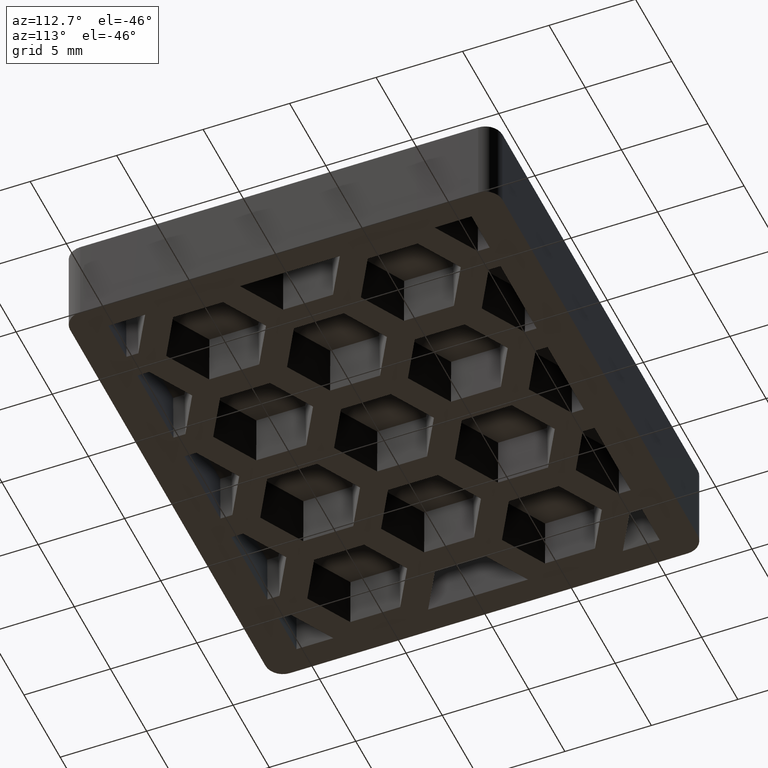
[diagram: clean part render]
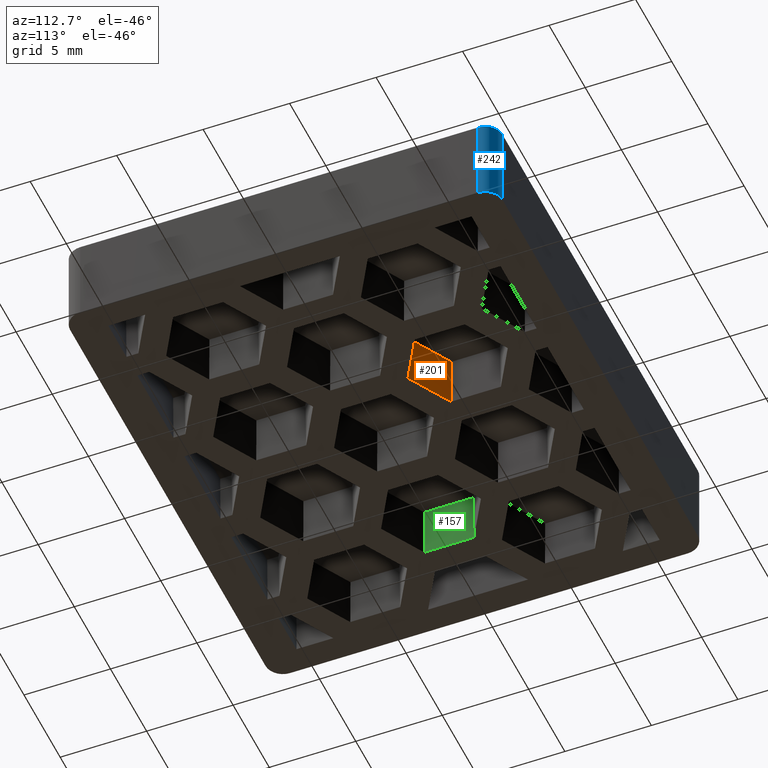
[diagram: same view with three faces highlighted in distinct colors, each labeled with its STEP entity id]
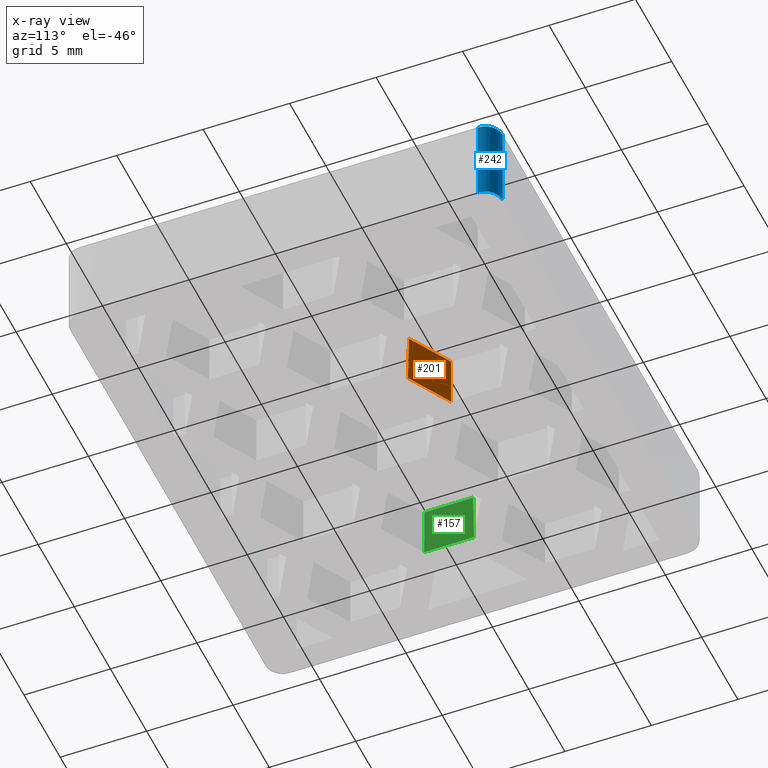
[diagram: x-ray of the same camera — body ghosted, the three highlighted faces saturated]
A machine part, auxiliary view with three faces highlighted in distinct colors.
The next image is the same camera in x-ray (body ghosted, the three faces saturated) — at least one of them is partly hidden behind the body in this view.
Their STEP definitions:

[orange] entity #201 — the highlighted planar face has unit normal (-0.4999, -0.8659, 0.0175).
#201 = ADVANCED_FACE( '', ( #552 ), #553, .F. );
#552 = FACE_OUTER_BOUND( '', #968, .T. );
#553 = PLANE( '', #969 );
#968 = EDGE_LOOP( '', ( #2170, #2171, #2172, #2173 ) );
#969 = AXIS2_PLACEMENT_3D( '', #2174, #2175, #2176 );
#2170 = ORIENTED_EDGE( '', *, *, #2955, .T. );
#2171 = ORIENTED_EDGE( '', *, *, #3059, .T. );
#2172 = ORIENTED_EDGE( '', *, *, #2799, .F. );
#2173 = ORIENTED_EDGE( '', *, *, #3060, .F. );
#2174 = CARTESIAN_POINT( '', ( 4.50000000000000, 2.02072594216369, -1.23729691405368E-016 ) );
#2175 = DIRECTION( '', ( -0.499923847578195, -0.865893503920754, 0.0174524064372836 ) );
#2176 = DIRECTION( '', ( 0.866025403784439, -0.500000000000000, 3.06058338817720E-017 ) );
#2799 = EDGE_CURVE( '', #3440, #3431, #3442, .F. );
#2955 = EDGE_CURVE( '', #3721, #3719, #3722, .F. );
#3059 = EDGE_CURVE( '', #3719, #3431, #3857, .T. );
#3060 = EDGE_CURVE( '', #3721, #3440, #3858, .T. );
#3431 = VERTEX_POINT( '', #4383 );
#3440 = VERTEX_POINT( '', #4396 );
#3442 = LINE( '', #4399, #4400 );
#3719 = VERTEX_POINT( '', #4823 );
#3721 = VERTEX_POINT( '', #4826 );
#3722 = LINE( '', #4827, #4828 );
#3857 = LINE( '', #5066, #5067 );
#3858 = LINE( '', #5068, #5069 );
#4383 = CARTESIAN_POINT( '', ( 3.25000000000000, 2.74241377865072, -1.67918866907285E-016 ) );
#4396 = CARTESIAN_POINT( '', ( 0.750000000000003, 4.18578945162478, -2.56297217911120E-016 ) );
#4399 = CARTESIAN_POINT( '', ( 5.75000000000000, 1.29903810567666, -7.95405159034511E-017 ) );
#4400 = VECTOR( '', #5351, 1000.00000000000 );
#4823 = CARTESIAN_POINT( '', ( 3.25000000000000, 2.80287989726089, 2.99999999999998 ) );
#4826 = CARTESIAN_POINT( '', ( 0.802365194784655, 4.21602251092987, 2.99999999999998 ) );
#4827 = CARTESIAN_POINT( '', ( -13.7704507724758, 12.6296417324786, 2.99999999999999 ) );
#4828 = VECTOR( '', #5523, 1000.00000000000 );
#5066 = CARTESIAN_POINT( '', ( 3.25000000000000, 2.74185696705768, -0.0276259633910718 ) );
#5067 = VECTOR( '', #5627, 1000.00000000000 );
#5068 = CARTESIAN_POINT( '', ( 0.750761388923207, 4.18622903972455, 0.0436199421964265 ) );
#5069 = VECTOR( '', #5628, 1000.00000000000 );
#5351 = DIRECTION( '', ( -0.866025403784439, 0.500000000000000, -3.06151588455594E-017 ) );
#5523 = DIRECTION( '', ( -0.866025403784439, 0.500000000000000, -3.06151588455594E-017 ) );
#5627 = DIRECTION( '', ( 3.00523943436880E-018, -0.0201512801671580, -0.999796942337605 ) );
#5628 = DIRECTION( '', ( -0.0174515205435363, -0.0100756400835790, -0.999796942337605 ) );

[blue] entity #242 — the highlighted cylindrical surface (edge-blend (fillet) strip) has radius 1 mm, axis along (-0, -0, -1).
#242 = ADVANCED_FACE( '', ( #634 ), #635, .T. );
#634 = FACE_OUTER_BOUND( '', #1050, .T. );
#635 = CYLINDRICAL_SURFACE( '', #1051, 1.00000000000000 );
#1050 = EDGE_LOOP( '', ( #2457, #2458, #2459, #2460 ) );
#1051 = AXIS2_PLACEMENT_3D( '', #2461, #2462, #2463 );
#2457 = ORIENTED_EDGE( '', *, *, #2823, .T. );
#2458 = ORIENTED_EDGE( '', *, *, #2645, .T. );
#2459 = ORIENTED_EDGE( '', *, *, #3098, .F. );
#2460 = ORIENTED_EDGE( '', *, *, #2806, .F. );
#2461 = CARTESIAN_POINT( '', ( 13.5000000000000, 11.5000000000000, -50.5034822749030 ) );
#2462 = DIRECTION( '', ( -1.49519739311857E-016, -2.33178017899756E-016, -1.00000000000000 ) );
#2463 = DIRECTION( '', ( 1.00000000000000, -4.62592926927148E-016, -1.49519739311857E-016 ) );
#2645 = EDGE_CURVE( '', #3137, #3135, #3138, .T. );
#2806 = EDGE_CURVE( '', #3453, #3443, #3455, .T. );
#2823 = EDGE_CURVE( '', #3453, #3137, #3481, .T. );
#3098 = EDGE_CURVE( '', #3443, #3135, #3896, .T. );
#3135 = VERTEX_POINT( '', #3944 );
#3137 = VERTEX_POINT( '', #3947 );
#3138 = CIRCLE( '', #3948, 1.00000000000000 );
#3443 = VERTEX_POINT( '', #4401 );
#3453 = VERTEX_POINT( '', #4413 );
#3455 = CIRCLE( '', #4416, 1.00000000000000 );
#3481 = LINE( '', #4458, #4459 );
#3896 = LINE( '', #5144, #5145 );
#3944 = CARTESIAN_POINT( '', ( 14.5000000000000, 11.5000000000000, 4.99999999999999 ) );
#3947 = CARTESIAN_POINT( '', ( 13.5000000000000, 12.5000000000000, 4.99999999999999 ) );
#3948 = AXIS2_PLACEMENT_3D( '', #5183, #5184, #5185 );
#4401 = CARTESIAN_POINT( '', ( 14.5000000000000, 11.5000000000000, -7.64304255735510E-015 ) );
#4413 = CARTESIAN_POINT( '', ( 13.5000000000000, 12.5000000000000, -7.70427287504621E-015 ) );
#4416 = AXIS2_PLACEMENT_3D( '', #5364, #5365, #5366 );
#4458 = CARTESIAN_POINT( '', ( 13.5000000000000, 12.5000000000000, -50.5034822749030 ) );
#4459 = VECTOR( '', #5383, 1000.00000000000 );
#5144 = CARTESIAN_POINT( '', ( 14.5000000000000, 11.5000000000000, -50.5034822749030 ) );
#5145 = VECTOR( '', #5666, 1000.00000000000 );
#5183 = CARTESIAN_POINT( '', ( 13.5000000000000, 11.5000000000000, 4.99999999999999 ) );
#5184 = DIRECTION( '', ( 0.000000000000000, -6.12303176911189E-017, -1.00000000000000 ) );
#5185 = DIRECTION( '', ( 0.000000000000000, 1.00000000000000, -6.12303176911189E-017 ) );
#5364 = CARTESIAN_POINT( '', ( 13.5000000000000, 11.5000000000000, -7.64304255735510E-015 ) );
#5365 = DIRECTION( '', ( 0.000000000000000, -6.12303176911189E-017, -1.00000000000000 ) );
#5366 = DIRECTION( '', ( 0.000000000000000, 1.00000000000000, -6.12303176911189E-017 ) );
#5383 = DIRECTION( '', ( 1.49519739311857E-016, 2.33178017899756E-016, 1.00000000000000 ) );
#5666 = DIRECTION( '', ( 1.49519739311857E-016, 2.33178017899756E-016, 1.00000000000000 ) );

[green] entity #157 — the highlighted planar face has unit normal (-0.9998, 0, 0.0175).
#157 = ADVANCED_FACE( '', ( #464 ), #465, .F. );
#464 = FACE_OUTER_BOUND( '', #880, .T. );
#465 = PLANE( '', #881 );
#880 = EDGE_LOOP( '', ( #1862, #1863, #1864, #1865 ) );
#881 = AXIS2_PLACEMENT_3D( '', #1866, #1867, #1868 );
#1862 = ORIENTED_EDGE( '', *, *, #3014, .T. );
#1863 = ORIENTED_EDGE( '', *, *, #2773, .T. );
#1864 = ORIENTED_EDGE( '', *, *, #3015, .F. );
#1865 = ORIENTED_EDGE( '', *, *, #2899, .F. );
#1866 = CARTESIAN_POINT( '', ( -9.00000000000000, -1.44337567297406, 8.83783510038343E-017 ) );
#1867 = DIRECTION( '', ( -0.999847695156391, 1.12074009618731E-016, 0.0174524064372835 ) );
#1868 = DIRECTION( '', ( -0.0174524064372835, -6.12209920171588E-017, -0.999847695156391 ) );
#2773 = EDGE_CURVE( '', #3390, #3388, #3391, .T. );
#2899 = EDGE_CURVE( '', #3609, #3611, #3612, .T. );
#3014 = EDGE_CURVE( '', #3609, #3390, #3812, .T. );
#3015 = EDGE_CURVE( '', #3611, #3388, #3813, .T. );
#3388 = VERTEX_POINT( '', #4318 );
#3390 = VERTEX_POINT( '', #4321 );
#3391 = LINE( '', #4322, #4323 );
#3609 = VERTEX_POINT( '', #4657 );
#3611 = VERTEX_POINT( '', #4660 );
#3612 = LINE( '', #4661, #4662 );
#3812 = LINE( '', #4976, #4977 );
#3813 = LINE( '', #4978, #4979 );
#4318 = CARTESIAN_POINT( '', ( -9.00000000000000, 1.44337567297406, -8.83783510038344E-017 ) );
#4321 = CARTESIAN_POINT( '', ( -9.00000000000000, -1.44337567297407, 8.83783510038346E-017 ) );
#4322 = CARTESIAN_POINT( '', ( -9.00000000000000, -1.44337567297406, 8.83783510038344E-017 ) );
#4323 = VECTOR( '', #5325, 1000.00000000000 );
#4657 = CARTESIAN_POINT( '', ( -8.94763480521535, -1.41314261366898, 3.00000000000000 ) );
#4660 = CARTESIAN_POINT( '', ( -8.94763480521535, 1.41314261366898, 3.00000000000000 ) );
#4661 = CARTESIAN_POINT( '', ( -8.94763480521535, 10.4999999999999, 3.00000000000000 ) );
#4662 = VECTOR( '', #5467, 1000.00000000000 );
#4976 = CARTESIAN_POINT( '', ( -8.99824880547663, -1.44236462034460, 0.100325867051776 ) );
#4977 = VECTOR( '', #5582, 1000.00000000000 );
#4978 = CARTESIAN_POINT( '', ( -8.99949240738453, 1.44308261424088, 0.0290799614642844 ) );
#4979 = VECTOR( '', #5583, 1000.00000000000 );
#5325 = DIRECTION( '', ( 1.11022302462516E-016, 1.00000000000000, -6.12303176911189E-017 ) );
#5467 = DIRECTION( '', ( 1.11022302462516E-016, 1.00000000000000, -6.12303176911189E-017 ) );
#5582 = DIRECTION( '', ( -0.0174515205435363, -0.0100756400835790, -0.999796942337605 ) );
#5583 = DIRECTION( '', ( -0.0174515205435363, 0.0100756400835789, -0.999796942337605 ) );